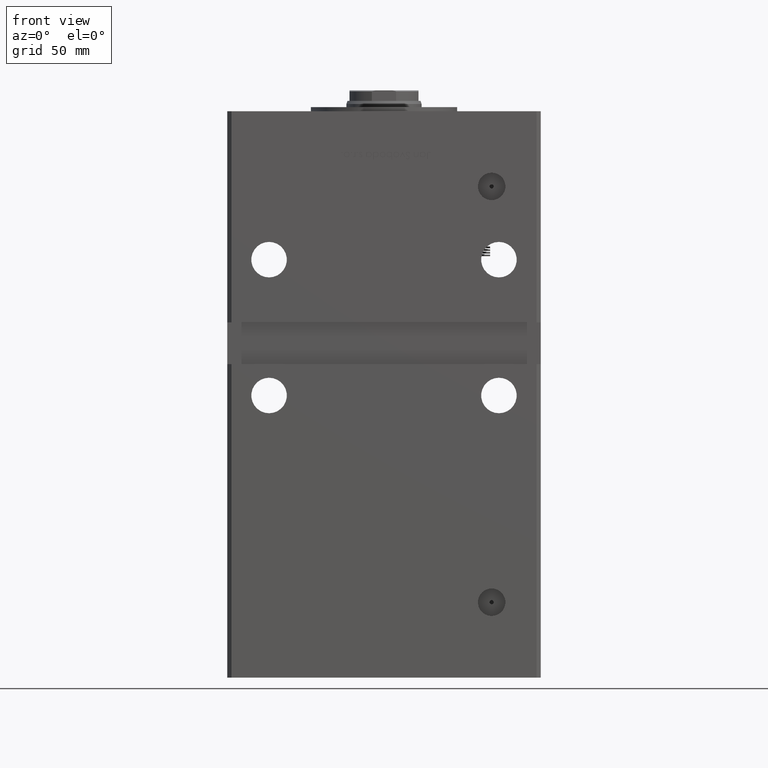
[diagram: clean part render]
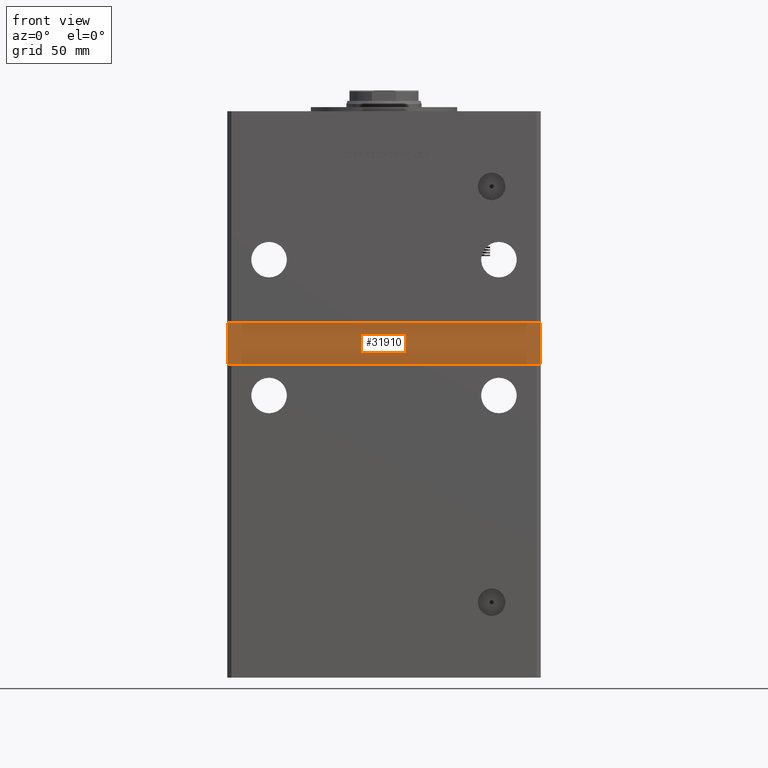
[diagram: same view with one face highlighted and labeled with its STEP entity id]
A machine part, front view. The second image highlights one B-rep face of the part: STEP entity #31910.
In plain terms, the highlighted planar face has unit normal (0, -1, 0).
Its self-contained STEP definition (entity closure, byte-faithful):
#583 = VECTOR ( 'NONE', #30642, 1000.000000000000000 ) ;
#594 = EDGE_CURVE ( 'NONE', #36875, #13352, #26968, .T. ) ;
#6056 = LINE ( 'NONE', #19023, #13340 ) ;
#6793 = FACE_OUTER_BOUND ( 'NONE', #24789, .T. ) ;
#6896 = DIRECTION ( 'NONE',  ( -1.000000000000000000, -0.000000000000000000, -0.000000000000000000 ) ) ;
#8323 = EDGE_CURVE ( 'NONE', #49416, #9055, #6056, .T. ) ;
#9055 = VERTEX_POINT ( 'NONE', #45246 ) ;
#11280 = PLANE ( 'NONE',  #16183 ) ;
#13340 = VECTOR ( 'NONE', #6896, 1000.000000000000000 ) ;
#13352 = VERTEX_POINT ( 'NONE', #52558 ) ;
#14954 = DIRECTION ( 'NONE',  ( 0.000000000000000000, -1.000000000000000000, 0.000000000000000000 ) ) ;
#16183 = AXIS2_PLACEMENT_3D ( 'NONE', #23426, #14954, #54421 ) ;
#18061 = CARTESIAN_POINT ( 'NONE',  ( -74.99999999999998579, -57.50000000000000000, 123.0000000000000000 ) ) ;
#18970 = CARTESIAN_POINT ( 'NONE',  ( -74.99999999999998579, -57.50000000000000000, 143.0000000000000284 ) ) ;
#19023 = CARTESIAN_POINT ( 'NONE',  ( -74.99999999999998579, -57.50000000000000000, 143.0000000000000284 ) ) ;
#19163 = EDGE_CURVE ( 'NONE', #13352, #49416, #50067, .T. ) ;
#23112 = VECTOR ( 'NONE', #27150, 1000.000000000000000 ) ;
#23426 = CARTESIAN_POINT ( 'NONE',  ( 0.000000000000000000, -57.50000000000000000, 0.000000000000000000 ) ) ;
#23480 = LINE ( 'NONE', #18970, #23112 ) ;
#24035 = VECTOR ( 'NONE', #38211, 1000.000000000000000 ) ;
#24789 = EDGE_LOOP ( 'NONE', ( #36298, #50468, #34264, #48406 ) ) ;
#26968 = LINE ( 'NONE', #35147, #583 ) ;
#27150 = DIRECTION ( 'NONE',  ( 0.000000000000000000, 0.000000000000000000, -1.000000000000000000 ) ) ;
#30642 = DIRECTION ( 'NONE',  ( 1.000000000000000000, 0.000000000000000000, 0.000000000000000000 ) ) ;
#31910 = ADVANCED_FACE ( 'NONE', ( #6793 ), #11280, .T. ) ;
#34264 = ORIENTED_EDGE ( 'NONE', *, *, #49153, .T. ) ;
#34980 = CARTESIAN_POINT ( 'NONE',  ( 74.99999999999998579, -57.50000000000000000, 143.0000000000000284 ) ) ;
#35147 = CARTESIAN_POINT ( 'NONE',  ( -74.99999999999998579, -57.50000000000000000, 123.0000000000000000 ) ) ;
#36298 = ORIENTED_EDGE ( 'NONE', *, *, #19163, .T. ) ;
#36875 = VERTEX_POINT ( 'NONE', #18061 ) ;
#38211 = DIRECTION ( 'NONE',  ( -0.000000000000000000, -0.000000000000000000, 1.000000000000000000 ) ) ;
#45246 = CARTESIAN_POINT ( 'NONE',  ( -74.99999999999998579, -57.50000000000000000, 143.0000000000000284 ) ) ;
#45836 = CARTESIAN_POINT ( 'NONE',  ( 74.99999999999998579, -57.50000000000000000, 143.0000000000000284 ) ) ;
#48406 = ORIENTED_EDGE ( 'NONE', *, *, #594, .T. ) ;
#49153 = EDGE_CURVE ( 'NONE', #9055, #36875, #23480, .T. ) ;
#49416 = VERTEX_POINT ( 'NONE', #34980 ) ;
#50067 = LINE ( 'NONE', #45836, #24035 ) ;
#50468 = ORIENTED_EDGE ( 'NONE', *, *, #8323, .T. ) ;
#52558 = CARTESIAN_POINT ( 'NONE',  ( 74.99999999999998579, -57.49999999999999289, 123.0000000000000000 ) ) ;
#54421 = DIRECTION ( 'NONE',  ( 0.000000000000000000, -0.000000000000000000, -1.000000000000000000 ) ) ;